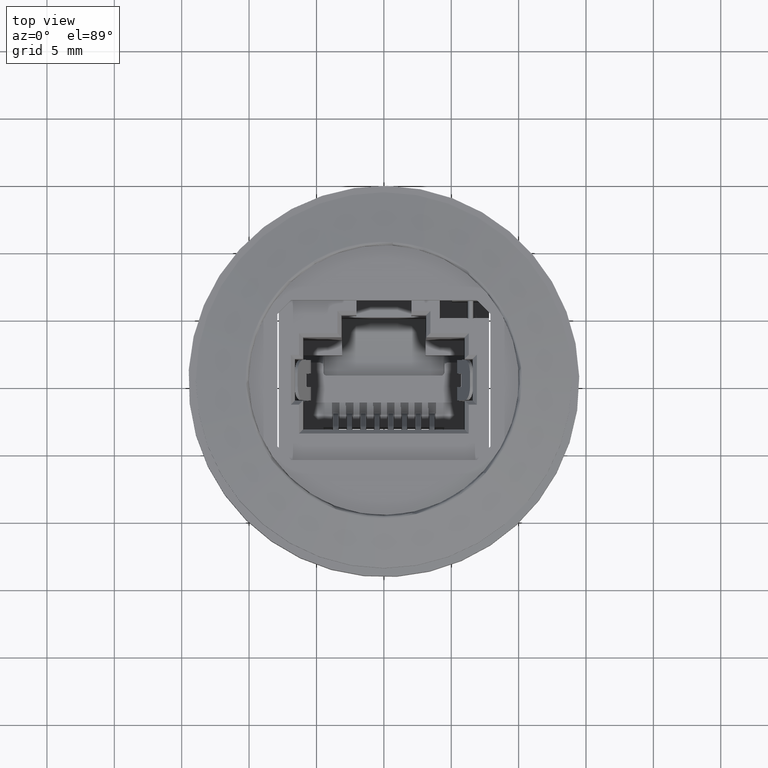
[diagram: clean part render]
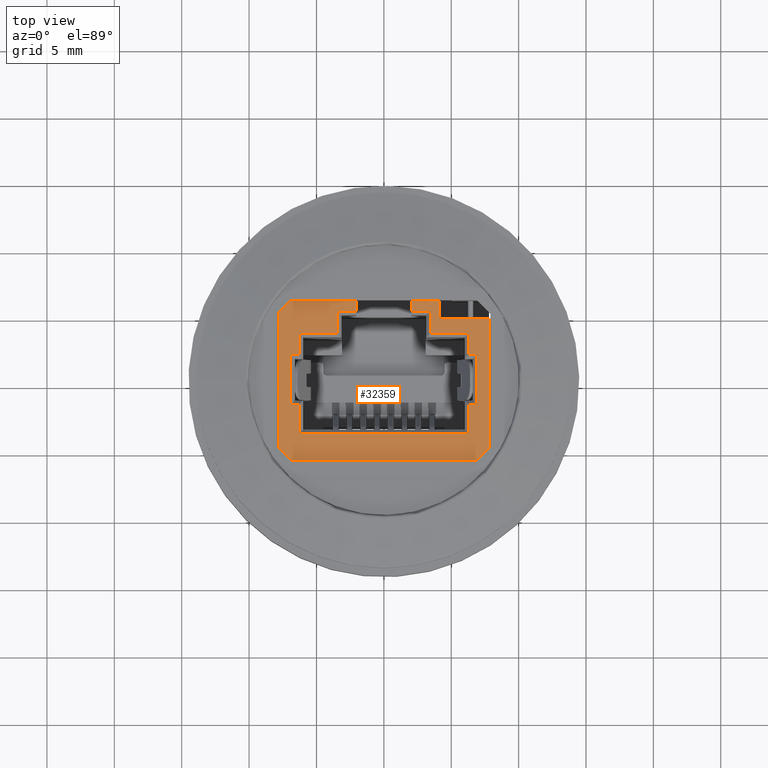
[diagram: same view with one face highlighted and labeled with its STEP entity id]
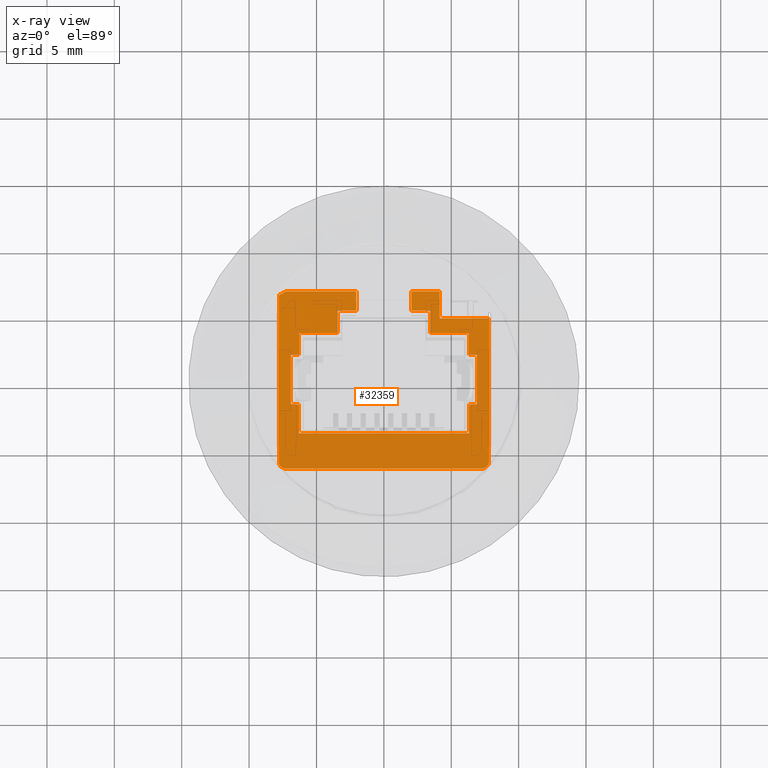
[diagram: x-ray of the same camera — body ghosted, the highlighted face saturated]
A machine part, top view. The second image highlights one B-rep face of the part: STEP entity #32359.
The next image is the same camera in x-ray: the body ghosted, the highlighted face saturated — about 0% of this face is hidden behind the body in this view.
In plain terms, the highlighted planar face has unit normal (0, -0, 1).
Its self-contained STEP definition (entity closure, byte-faithful):
#1683=CIRCLE('',#34818,0.05);
#1684=CIRCLE('',#34819,0.05);
#2932=FACE_OUTER_BOUND('',#4534,.T.);
#4534=EDGE_LOOP('',(#25886,#25887,#25888,#25889,#25890,#25891,#25892,#25893,
#25894,#25895,#25896,#25897,#25898,#25899,#25900,#25901,#25902,#25903,#25904,
#25905,#25906,#25907,#25908,#25909,#25910,#25911,#25912,#25913,#25914));
#5176=LINE('',#44205,#8525);
#5184=LINE('',#44221,#8533);
#7668=LINE('',#50723,#11017);
#7672=LINE('',#50731,#11021);
#7674=LINE('',#50735,#11023);
#7679=LINE('',#50746,#11028);
#7682=LINE('',#50752,#11031);
#7686=LINE('',#50760,#11035);
#7690=LINE('',#50768,#11039);
#7692=LINE('',#50772,#11041);
#7696=LINE('',#50780,#11045);
#7698=LINE('',#50784,#11047);
#7700=LINE('',#50787,#11049);
#7702=LINE('',#50790,#11051);
#7704=LINE('',#50794,#11053);
#7706=LINE('',#50797,#11055);
#7708=LINE('',#50800,#11057);
#7710=LINE('',#50804,#11059);
#7715=LINE('',#50813,#11064);
#7735=LINE('',#50851,#11084);
#7737=LINE('',#50854,#11086);
#7738=LINE('',#50856,#11087);
#7739=LINE('',#50858,#11088);
#7740=LINE('',#50862,#11089);
#7741=LINE('',#50866,#11090);
#7742=LINE('',#50868,#11091);
#7743=LINE('',#50869,#11092);
#8525=VECTOR('',#35789,0.1);
#8533=VECTOR('',#35797,0.1);
#11017=VECTOR('',#41881,0.1);
#11021=VECTOR('',#41887,0.1);
#11023=VECTOR('',#41891,0.1);
#11028=VECTOR('',#41898,0.1);
#11031=VECTOR('',#41903,0.1);
#11035=VECTOR('',#41909,0.1);
#11039=VECTOR('',#41915,0.1);
#11041=VECTOR('',#41919,0.1);
#11045=VECTOR('',#41925,0.1);
#11047=VECTOR('',#41929,0.1);
#11049=VECTOR('',#41933,0.1);
#11051=VECTOR('',#41937,0.1);
#11053=VECTOR('',#41941,0.1);
#11055=VECTOR('',#41945,0.1);
#11057=VECTOR('',#41949,0.1);
#11059=VECTOR('',#41953,0.1);
#11064=VECTOR('',#41960,0.1);
#11084=VECTOR('',#41994,0.1);
#11086=VECTOR('',#41998,0.1);
#11087=VECTOR('',#41999,0.1);
#11088=VECTOR('',#42000,0.1);
#11089=VECTOR('',#42003,0.1);
#11090=VECTOR('',#42006,0.1);
#11091=VECTOR('',#42007,0.1);
#11092=VECTOR('',#42008,0.1);
#11869=VERTEX_POINT('',#44201);
#11871=VERTEX_POINT('',#44204);
#11878=VERTEX_POINT('',#44218);
#11879=VERTEX_POINT('',#44220);
#14056=VERTEX_POINT('',#50720);
#14057=VERTEX_POINT('',#50722);
#14060=VERTEX_POINT('',#50730);
#14061=VERTEX_POINT('',#50734);
#14065=VERTEX_POINT('',#50743);
#14066=VERTEX_POINT('',#50745);
#14068=VERTEX_POINT('',#50751);
#14070=VERTEX_POINT('',#50757);
#14071=VERTEX_POINT('',#50759);
#14073=VERTEX_POINT('',#50765);
#14074=VERTEX_POINT('',#50767);
#14075=VERTEX_POINT('',#50771);
#14077=VERTEX_POINT('',#50777);
#14078=VERTEX_POINT('',#50779);
#14079=VERTEX_POINT('',#50783);
#14080=VERTEX_POINT('',#50793);
#14081=VERTEX_POINT('',#50803);
#14083=VERTEX_POINT('',#50809);
#14096=VERTEX_POINT('',#50855);
#14097=VERTEX_POINT('',#50857);
#14098=VERTEX_POINT('',#50859);
#14099=VERTEX_POINT('',#50861);
#14100=VERTEX_POINT('',#50863);
#14101=VERTEX_POINT('',#50865);
#14102=VERTEX_POINT('',#50867);
#14910=EDGE_CURVE('',#11871,#11869,#5176,.T.);
#14918=EDGE_CURVE('',#11879,#11878,#5184,.T.);
#18208=EDGE_CURVE('',#14056,#14057,#7668,.T.);
#18212=EDGE_CURVE('',#14057,#14060,#7672,.T.);
#18214=EDGE_CURVE('',#14060,#14061,#7674,.T.);
#18219=EDGE_CURVE('',#14065,#14066,#7679,.T.);
#18222=EDGE_CURVE('',#14061,#14068,#7682,.T.);
#18226=EDGE_CURVE('',#14070,#14071,#7686,.T.);
#18230=EDGE_CURVE('',#14073,#14074,#7690,.T.);
#18232=EDGE_CURVE('',#14071,#14075,#7692,.T.);
#18236=EDGE_CURVE('',#14077,#14078,#7696,.T.);
#18238=EDGE_CURVE('',#14078,#14079,#7698,.T.);
#18240=EDGE_CURVE('',#14075,#14077,#7700,.T.);
#18242=EDGE_CURVE('',#14079,#14073,#7702,.T.);
#18244=EDGE_CURVE('',#14074,#14080,#7704,.T.);
#18246=EDGE_CURVE('',#14068,#14070,#7706,.T.);
#18248=EDGE_CURVE('',#14080,#14065,#7708,.T.);
#18250=EDGE_CURVE('',#14066,#14081,#7710,.T.);
#18255=EDGE_CURVE('',#14081,#14083,#7715,.T.);
#18275=EDGE_CURVE('',#11878,#14083,#7735,.T.);
#18277=EDGE_CURVE('',#14056,#11871,#7737,.T.);
#18278=EDGE_CURVE('',#14096,#11869,#7738,.T.);
#18279=EDGE_CURVE('',#14096,#14097,#7739,.T.);
#18280=EDGE_CURVE('',#14098,#14097,#1683,.T.);
#18281=EDGE_CURVE('',#14098,#14099,#7740,.T.);
#18282=EDGE_CURVE('',#14100,#14099,#1684,.T.);
#18283=EDGE_CURVE('',#14100,#14101,#7741,.T.);
#18284=EDGE_CURVE('',#14101,#14102,#7742,.T.);
#18285=EDGE_CURVE('',#14102,#11879,#7743,.T.);
#25886=ORIENTED_EDGE('',*,*,#18255,.F.);
#25887=ORIENTED_EDGE('',*,*,#18250,.F.);
#25888=ORIENTED_EDGE('',*,*,#18219,.F.);
#25889=ORIENTED_EDGE('',*,*,#18248,.F.);
#25890=ORIENTED_EDGE('',*,*,#18244,.F.);
#25891=ORIENTED_EDGE('',*,*,#18230,.F.);
#25892=ORIENTED_EDGE('',*,*,#18242,.F.);
#25893=ORIENTED_EDGE('',*,*,#18238,.F.);
#25894=ORIENTED_EDGE('',*,*,#18236,.F.);
#25895=ORIENTED_EDGE('',*,*,#18240,.F.);
#25896=ORIENTED_EDGE('',*,*,#18232,.F.);
#25897=ORIENTED_EDGE('',*,*,#18226,.F.);
#25898=ORIENTED_EDGE('',*,*,#18246,.F.);
#25899=ORIENTED_EDGE('',*,*,#18222,.F.);
#25900=ORIENTED_EDGE('',*,*,#18214,.F.);
#25901=ORIENTED_EDGE('',*,*,#18212,.F.);
#25902=ORIENTED_EDGE('',*,*,#18208,.F.);
#25903=ORIENTED_EDGE('',*,*,#18277,.T.);
#25904=ORIENTED_EDGE('',*,*,#14910,.T.);
#25905=ORIENTED_EDGE('',*,*,#18278,.F.);
#25906=ORIENTED_EDGE('',*,*,#18279,.T.);
#25907=ORIENTED_EDGE('',*,*,#18280,.F.);
#25908=ORIENTED_EDGE('',*,*,#18281,.T.);
#25909=ORIENTED_EDGE('',*,*,#18282,.F.);
#25910=ORIENTED_EDGE('',*,*,#18283,.T.);
#25911=ORIENTED_EDGE('',*,*,#18284,.T.);
#25912=ORIENTED_EDGE('',*,*,#18285,.T.);
#25913=ORIENTED_EDGE('',*,*,#14918,.T.);
#25914=ORIENTED_EDGE('',*,*,#18275,.T.);
#29387=PLANE('',#34817);
#32359=ADVANCED_FACE('',(#2932),#29387,.T.);
#34817=AXIS2_PLACEMENT_3D('',#50853,#41996,#41997);
#34818=AXIS2_PLACEMENT_3D('',#50860,#42001,#42002);
#34819=AXIS2_PLACEMENT_3D('',#50864,#42004,#42005);
#35789=DIRECTION('',(-1.,5.73312625077733E-16,1.35040193390471E-19));
#35797=DIRECTION('',(-1.,5.73312625077733E-16,1.35040193390471E-19));
#41881=DIRECTION('',(-1.,5.73312625077733E-16,1.35040193390471E-19));
#41887=DIRECTION('',(-5.73312625077733E-16,-1.,-6.1230317691118E-17));
#41891=DIRECTION('',(-1.,5.73312625077733E-16,1.35040193390471E-19));
#41898=DIRECTION('',(-1.,5.73312625077733E-16,1.35040193390471E-19));
#41903=DIRECTION('',(-5.73312625077733E-16,-1.,-6.1230317691118E-17));
#41909=DIRECTION('',(-5.73312625077733E-16,-1.,-6.1230317691118E-17));
#41915=DIRECTION('',(5.73312625077733E-16,1.,6.1230317691118E-17));
#41919=DIRECTION('',(1.,-5.73312625077733E-16,-1.35040193390471E-19));
#41925=DIRECTION('',(1.,-5.73312625077733E-16,-1.35040193390471E-19));
#41929=DIRECTION('',(5.73312625077733E-16,1.,6.1230317691118E-17));
#41933=DIRECTION('',(-5.73312625077733E-16,-1.,-6.1230317691118E-17));
#41937=DIRECTION('',(1.,-5.73312625077733E-16,-1.35040193390471E-19));
#41941=DIRECTION('',(-1.,5.73312625077733E-16,1.35040193390471E-19));
#41945=DIRECTION('',(-1.,5.73312625077733E-16,1.35040193390471E-19));
#41949=DIRECTION('',(5.73312625077733E-16,1.,6.1230317691118E-17));
#41953=DIRECTION('',(5.73312625077733E-16,1.,6.1230317691118E-17));
#41960=DIRECTION('',(-1.,5.73312625077733E-16,1.35040193390471E-19));
#41994=DIRECTION('',(-0.00872653549837349,-0.999961923064171,-6.12268077951991E-17));
#41996=DIRECTION('center_axis',(1.35040193390436E-19,-6.1230317691118E-17,
1.));
#41997=DIRECTION('ref_axis',(1.,-5.73312625077733E-16,-1.35040193390471E-19));
#41998=DIRECTION('',(-0.00872653549837356,0.999961923064171,6.1229164661281E-17));
#41999=DIRECTION('',(0.866025403784437,0.500000000000004,3.04982106075509E-17));
#42000=DIRECTION('',(-5.73312625077733E-16,-1.,-6.1230317691118E-17));
#42001=DIRECTION('center_axis',(-1.35040193390436E-19,6.1230317691118E-17,
-1.));
#42002=DIRECTION('ref_axis',(-0.707106781186548,-0.707106781186547,-4.3200885017117E-17));
#42003=DIRECTION('',(1.,-5.73312625077733E-16,-1.35040193390471E-19));
#42004=DIRECTION('center_axis',(-1.35040193390436E-19,6.1230317691118E-17,
-1.));
#42005=DIRECTION('ref_axis',(0.707106781186547,-0.707106781186548,-4.33918606900753E-17));
#42006=DIRECTION('',(5.73312625077733E-16,1.,6.1230317691118E-17));
#42007=DIRECTION('',(-1.,5.73312625077733E-16,1.35040193390471E-19));
#42008=DIRECTION('',(5.73312625077733E-16,1.,6.1230317691118E-17));
#44201=CARTESIAN_POINT('',(-0.728038475772924,0.659750000000002,0.900000000000004));
#44204=CARTESIAN_POINT('',(-0.204999999999989,0.659750000000002,0.900000000000004));
#44205=CARTESIAN_POINT('',(-0.204999999999989,0.659750000000002,0.900000000000004));
#44218=CARTESIAN_POINT('',(0.205000000000011,0.659750000000001,0.900000000000004));
#44220=CARTESIAN_POINT('',(0.415000000000011,0.659750000000001,0.900000000000004));
#44221=CARTESIAN_POINT('',(0.415000000000011,0.659750000000001,0.900000000000004));
#50720=CARTESIAN_POINT('',(-0.203734604170329,0.514750000000001,0.900000000000004));
#50722=CARTESIAN_POINT('',(-0.344999999999989,0.514750000000001,0.900000000000004));
#50723=CARTESIAN_POINT('',(-0.203734604170329,0.514750000000001,0.900000000000004));
#50730=CARTESIAN_POINT('',(-0.344999999999989,0.349750000000001,0.900000000000004));
#50731=CARTESIAN_POINT('',(-0.344999999999989,0.514750000000001,0.900000000000004));
#50734=CARTESIAN_POINT('',(-0.62999999999999,0.349750000000001,0.900000000000004));
#50735=CARTESIAN_POINT('',(-0.344999999999989,0.349750000000001,0.900000000000004));
#50743=CARTESIAN_POINT('',(0.630000000000011,0.34975,0.900000000000004));
#50745=CARTESIAN_POINT('',(0.345000000000011,0.34975,0.900000000000004));
#50746=CARTESIAN_POINT('',(0.630000000000011,0.34975,0.900000000000004));
#50751=CARTESIAN_POINT('',(-0.62999999999999,0.189750000000001,0.900000000000003));
#50752=CARTESIAN_POINT('',(-0.62999999999999,0.349750000000001,0.900000000000004));
#50757=CARTESIAN_POINT('',(-0.68999999999999,0.189750000000001,0.900000000000003));
#50759=CARTESIAN_POINT('',(-0.68999999999999,-0.180249999999999,0.900000000000003));
#50760=CARTESIAN_POINT('',(-0.68999999999999,0.189750000000001,0.900000000000003));
#50765=CARTESIAN_POINT('',(0.690000000000011,-0.18025,0.900000000000003));
#50767=CARTESIAN_POINT('',(0.690000000000011,0.18975,0.900000000000003));
#50768=CARTESIAN_POINT('',(0.690000000000011,-0.18025,0.900000000000003));
#50771=CARTESIAN_POINT('',(-0.62999999999999,-0.180249999999999,0.900000000000003));
#50772=CARTESIAN_POINT('',(-0.68999999999999,-0.180249999999999,0.900000000000003));
#50777=CARTESIAN_POINT('',(-0.62999999999999,-0.395249999999999,0.900000000000003));
#50779=CARTESIAN_POINT('',(0.630000000000011,-0.39525,0.900000000000003));
#50780=CARTESIAN_POINT('',(-0.62999999999999,-0.395249999999999,0.900000000000003));
#50783=CARTESIAN_POINT('',(0.630000000000011,-0.18025,0.900000000000003));
#50784=CARTESIAN_POINT('',(0.630000000000011,-0.39525,0.900000000000003));
#50787=CARTESIAN_POINT('',(-0.62999999999999,-0.180249999999999,0.900000000000003));
#50790=CARTESIAN_POINT('',(0.630000000000011,-0.18025,0.900000000000003));
#50793=CARTESIAN_POINT('',(0.630000000000011,0.18975,0.900000000000003));
#50794=CARTESIAN_POINT('',(0.690000000000011,0.18975,0.900000000000003));
#50797=CARTESIAN_POINT('',(-0.62999999999999,0.189750000000001,0.900000000000003));
#50800=CARTESIAN_POINT('',(0.630000000000011,0.18975,0.900000000000003));
#50803=CARTESIAN_POINT('',(0.345000000000011,0.51475,0.900000000000004));
#50804=CARTESIAN_POINT('',(0.345000000000011,0.34975,0.900000000000004));
#50809=CARTESIAN_POINT('',(0.203734604170351,0.51475,0.900000000000004));
#50813=CARTESIAN_POINT('',(0.345000000000011,0.51475,0.900000000000004));
#50851=CARTESIAN_POINT('',(0.205000000000011,0.659750000000001,0.900000000000004));
#50853=CARTESIAN_POINT('Origin',(-0.857999999999991,-0.721,0.900000000000003));
#50854=CARTESIAN_POINT('',(-0.203734604170329,0.514750000000001,0.900000000000004));
#50855=CARTESIAN_POINT('',(-0.77999999999999,0.629750000000001,0.900000000000004));
#50856=CARTESIAN_POINT('',(-0.77999999999999,0.629750000000001,0.900000000000004));
#50857=CARTESIAN_POINT('',(-0.77999999999999,-0.605249999999999,0.900000000000003));
#50858=CARTESIAN_POINT('',(-0.77999999999999,0.629750000000001,0.900000000000004));
#50859=CARTESIAN_POINT('',(-0.72999999999999,-0.65525,0.900000000000003));
#50860=CARTESIAN_POINT('Origin',(-0.72999999999999,-0.605249999999999,0.900000000000003));
#50861=CARTESIAN_POINT('',(0.730000000000012,-0.655250000000001,0.900000000000003));
#50862=CARTESIAN_POINT('',(-0.72999999999999,-0.65525,0.900000000000003));
#50863=CARTESIAN_POINT('',(0.780000000000012,-0.60525,0.900000000000003));
#50864=CARTESIAN_POINT('Origin',(0.730000000000012,-0.60525,0.900000000000003));
#50865=CARTESIAN_POINT('',(0.780000000000012,0.45975,0.900000000000004));
#50866=CARTESIAN_POINT('',(0.780000000000012,-0.60525,0.900000000000003));
#50867=CARTESIAN_POINT('',(0.415000000000011,0.45975,0.900000000000004));
#50868=CARTESIAN_POINT('',(0.780000000000012,0.45975,0.900000000000004));
#50869=CARTESIAN_POINT('',(0.415000000000011,0.45975,0.900000000000004));